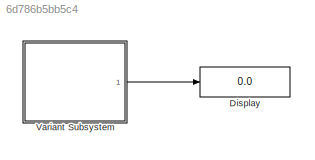
MODEL slx_6d786b5bb5c4
KIND model
CONFIG AbsTol = auto
CONFIG EnableMultiTasking = off
CONFIG FixedStep = 0.02
CONFIG MaxStep = auto
CONFIG MinStep = auto
CONFIG RelTol = 1e-3
CONFIG SampleTimeConstraint = Unconstrained
CONFIG SolverName = FixedStepAuto
CONFIG StartTime = 0.0
CONFIG StopTime = 10.0
BLOCK [Display] Display
  Decimation = 1
  Ports = [1]
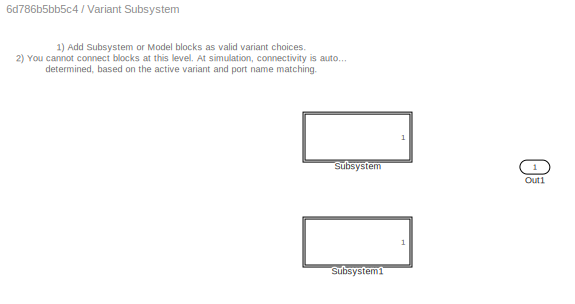
BLOCK [SubSystem] Variant Subsystem
  Ports = [0, 1]
  RequestExecContextInheritance = off
  Variant = on
BLOCK [Outport] Variant Subsystem/Out1
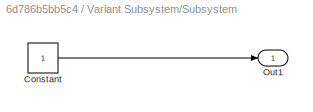
BLOCK [SubSystem] Variant Subsystem/Subsystem
  Ports = [0, 1]
  RequestExecContextInheritance = off
  VariantControl = Model ==1
BLOCK [Constant] Variant Subsystem/Subsystem/Constant
BLOCK [Outport] Variant Subsystem/Subsystem/Out1
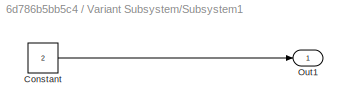
BLOCK [SubSystem] Variant Subsystem/Subsystem1
  Ports = [0, 1]
  RequestExecContextInheritance = off
  VariantControl = Model ==2
BLOCK [Constant] Variant Subsystem/Subsystem1/Constant
  Value = 2
BLOCK [Outport] Variant Subsystem/Subsystem1/Out1
ANNOTATION Variant Subsystem: 1) Add Subsystem or Model blocks as valid variant choices. 2) You cannot connect blocks at this level. At simulation, connectivity is automatically determined, based on the active variant and port name matching.
LINE Variant Subsystem/Subsystem/Constant:1 -> Variant Subsystem/Subsystem/Out1:1
LINE Variant Subsystem/Subsystem1/Constant:1 -> Variant Subsystem/Subsystem1/Out1:1
LINE Variant Subsystem:1 -> Display:1
